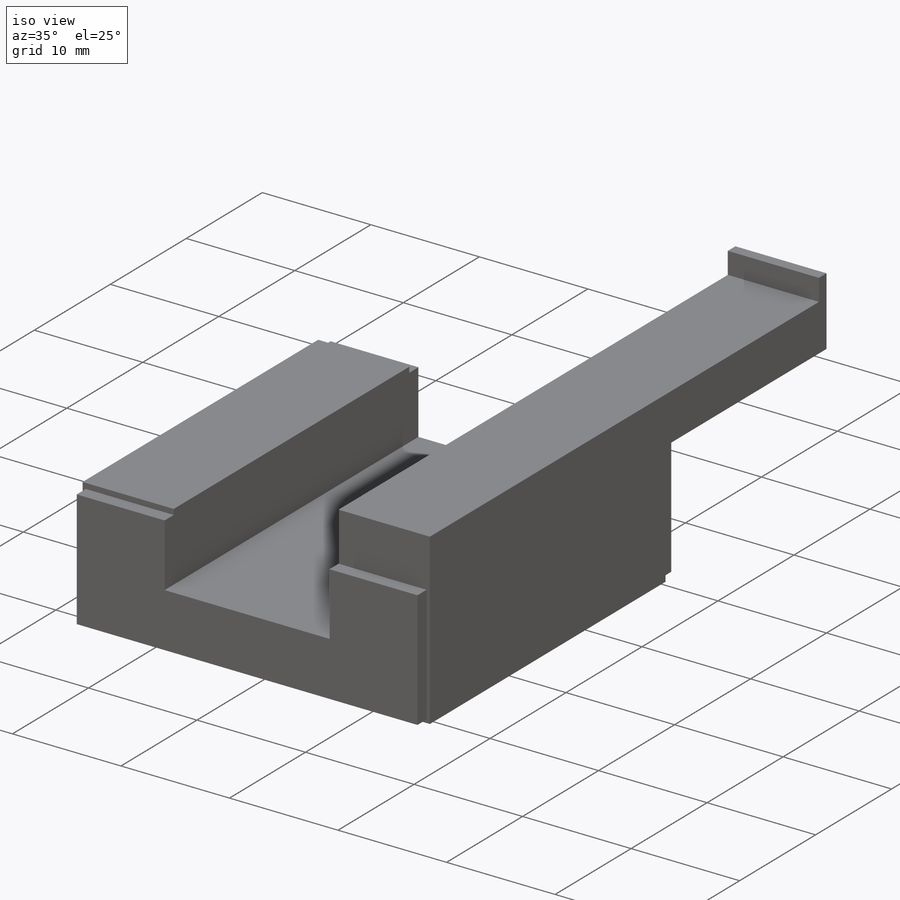
[diagram: iso view]
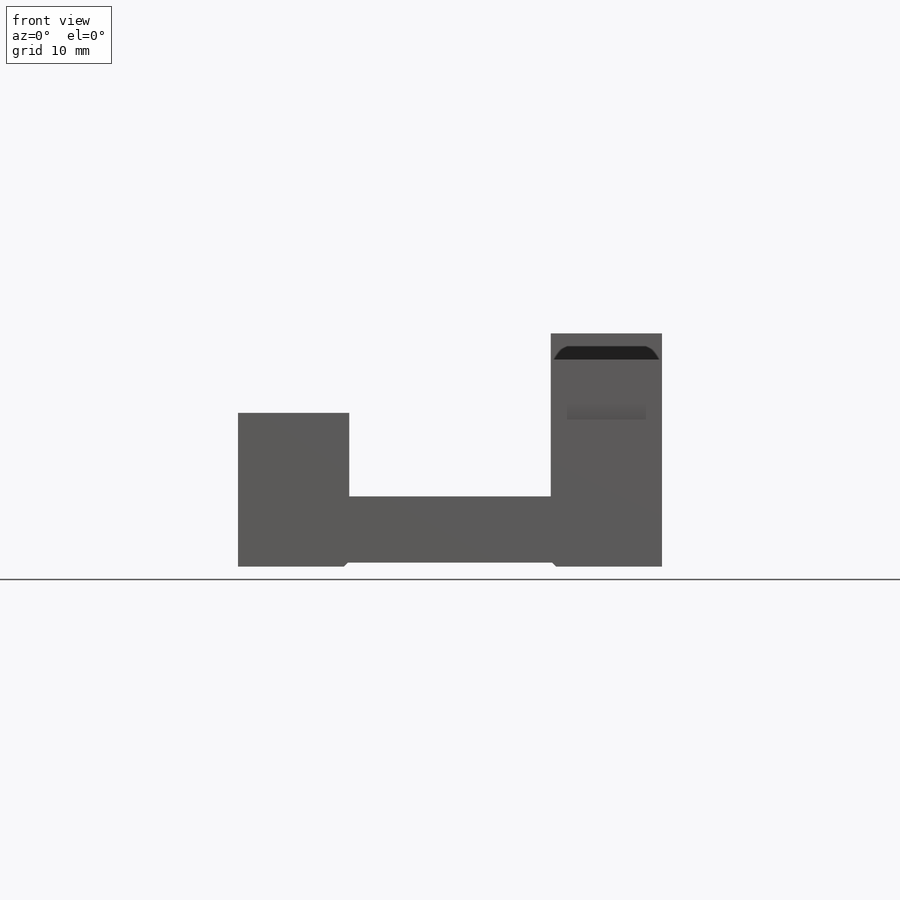
[diagram: front view]
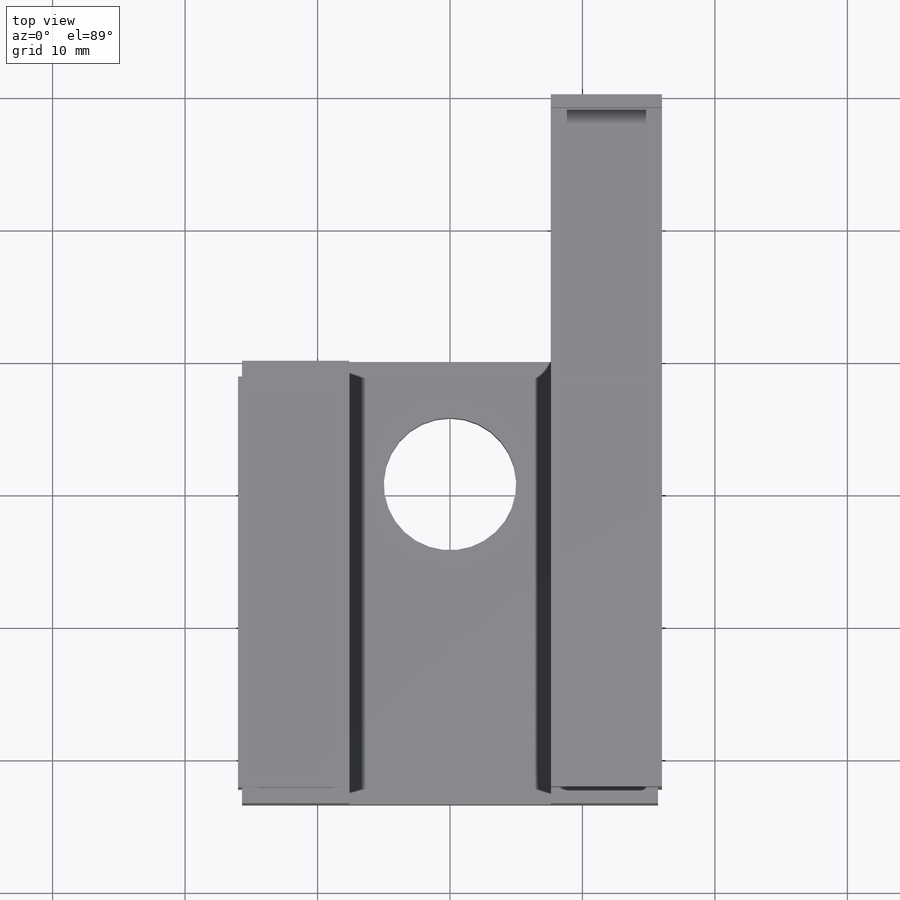
[diagram: top view]
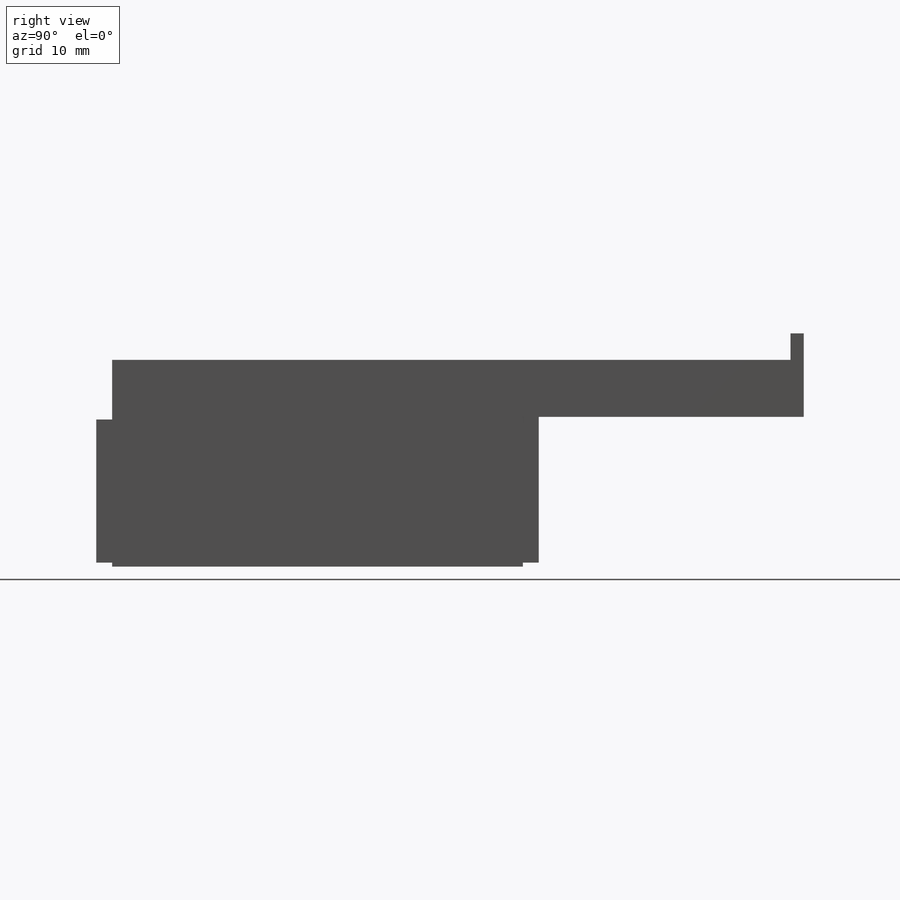
[diagram: right view]
SOLIDWORKS PART (.sldprt)
format: sldprt  version: not decoded by parser v0  size: 227,328 bytes
history: native  units: mm
features: plane x14, sketch x11, cut_extrude x4, cut_revolve x4, extrude x3, material x1 (+10 scaffold rows collapsed)
feature tree (47):
  scaffold x10  (default folders/planes/origin — collapsed)
  material  "材质 <未指定>"
  plane  "前视基准面"
  plane  "上视基准面"
  plane  "右视基准面"
  plane  "基准面4"
  sketch  "草图1"
  extrude  "凸台-拉伸1"  Depth=33.4mm
  plane  "基准面5"
  sketch  "草图2"
  cut_extrude  "切除-拉伸1"  Depth=1.2mm
  plane  "基准面6"
  sketch  "草图3"
  cut_extrude  "切除-拉伸2"  Depth=1.2mm
  plane  "基准面7"
  sketch  "草图4"
  extrude  "凸台-拉伸2"  Depth=21.2mm
  plane  "基准面8"
  sketch  "草图5"
  cut_revolve  "切除-旋转1"  Angle=360deg
  plane  "基准面9"
  sketch  "草图6"
  cut_revolve  "切除-旋转2"  Angle=360deg
  plane  "基准面10"
  sketch  "草图7"
  cut_revolve  "切除-旋转3"  Angle=360deg
  plane  "基准面11"
  sketch  "草图8"
  cut_revolve  "切除-旋转4"  Angle=360deg
  plane  "基准面12"
  sketch  "草图9"
  cut_extrude  "切除-拉伸3"  Depth=3.1mm
  plane  "基准面13"
  sketch  "草图10"
  cut_extrude  "切除-拉伸4"  Depth=5.3mm
  plane  "基准面14"
  sketch  "草图11"
  extrude  "凸台-拉伸3"  Depth=1mm
decode coverage: 11 of 22 modeling features carry decoded parameters
note: suppression state not decoded; provenance and decode notes live in map.json
